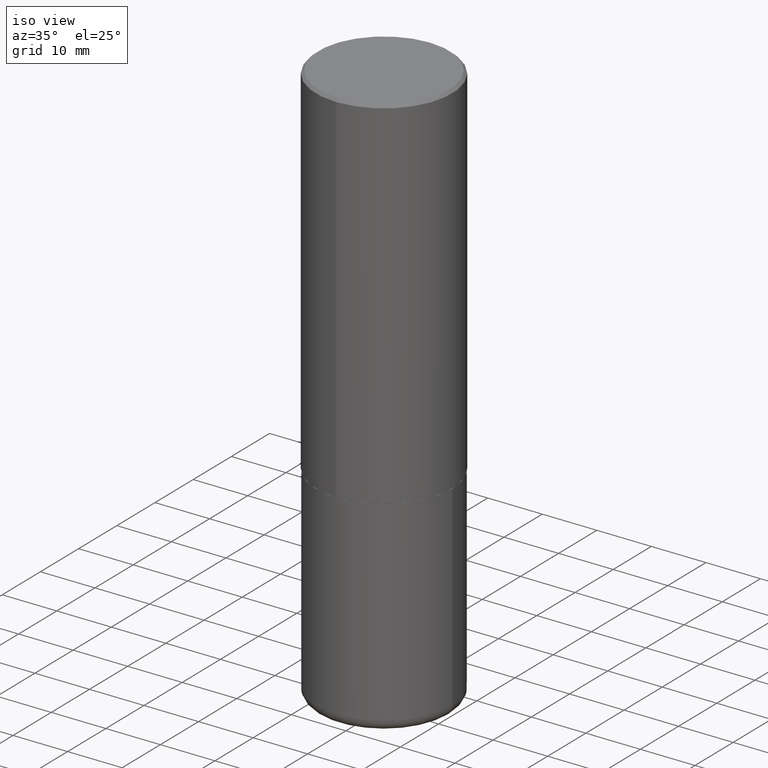
[diagram: clean part render]
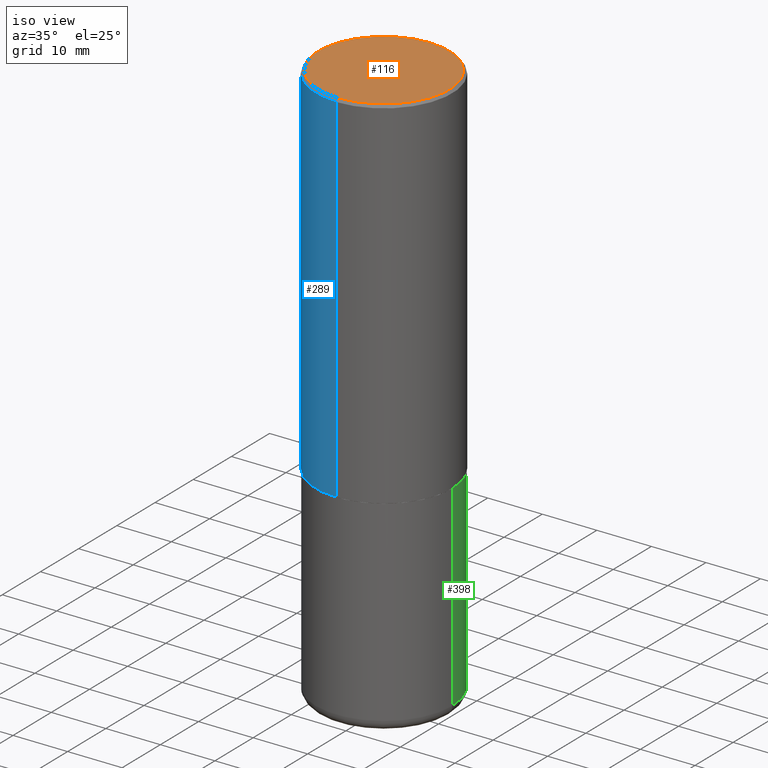
[diagram: same view with three faces highlighted in distinct colors, each labeled with its STEP entity id]
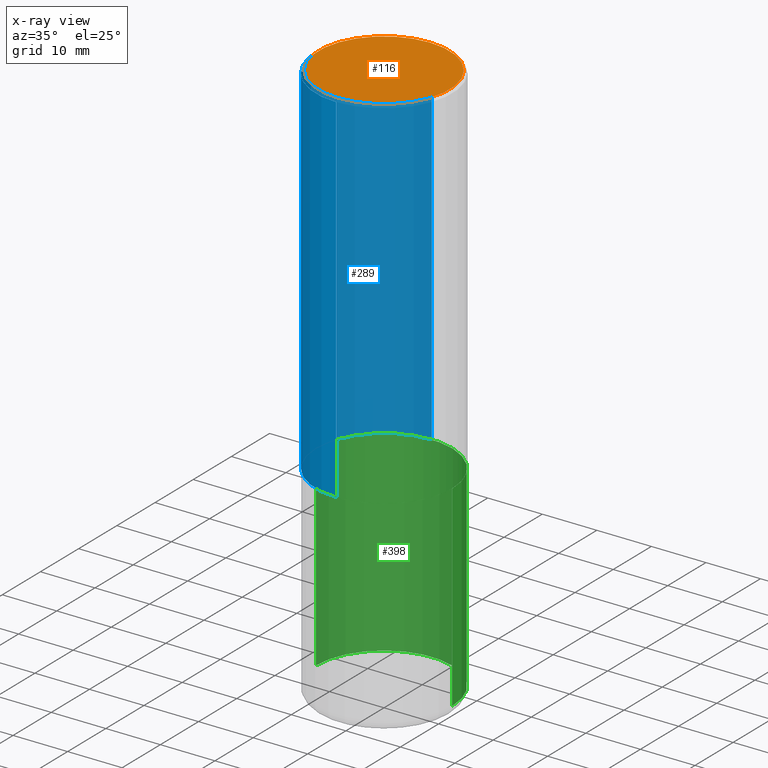
[diagram: x-ray of the same camera — body ghosted, the three highlighted faces saturated]
A machine part, iso view with three faces highlighted in distinct colors.
The next image is the same camera in x-ray (body ghosted, the three faces saturated) — at least one of them is partly hidden behind the body in this view.
Their STEP definitions:

[orange] entity #116 — the highlighted planar face has unit normal (0, -0, -1).
#32 = AXIS2_PLACEMENT_3D ( 'NONE', #371, #339, #60 ) ;
#60 = DIRECTION ( 'NONE',  ( 6.982962677686265922E-15, 1.000000000000000000, -3.490078220512605001E-15 ) ) ;
#82 = DIRECTION ( 'NONE',  ( -2.446448598478591086E-29, 3.490078220512604606E-15, 1.000000000000000000 ) ) ;
#114 = VERTEX_POINT ( 'NONE', #212 ) ;
#116 = ADVANCED_FACE ( 'NONE', ( #121 ), #244, .F. ) ;
#121 = FACE_OUTER_BOUND ( 'NONE', #333, .T. ) ;
#139 = CARTESIAN_POINT ( 'NONE',  ( -3.325455558251186907E-45, 4.744060441062489317E-31, 1.359299173634482631E-16 ) ) ;
#159 = DIRECTION ( 'NONE',  ( -6.982962677686265133E-15, -1.000000000000000000, 3.490078220512604606E-15 ) ) ;
#212 = CARTESIAN_POINT ( 'NONE',  ( 3.366835455046433267E-15, 0.4721499999999999031, -1.511910514451577641E-15 ) ) ;
#232 = DIRECTION ( 'NONE',  ( -6.982962677686265133E-15, -1.000000000000000000, 3.490078220512604606E-15 ) ) ;
#238 = EDGE_CURVE ( 'NONE', #304, #114, #256, .T. ) ;
#244 = PLANE ( 'NONE',  #32 ) ;
#254 = DIRECTION ( 'NONE',  ( -2.446448598478591086E-29, 3.490078220512604606E-15, 1.000000000000000000 ) ) ;
#256 = CIRCLE ( 'NONE', #411, 0.4721499999999999031 ) ;
#262 = CIRCLE ( 'NONE', #288, 0.4721499999999999031 ) ;
#264 = ORIENTED_EDGE ( 'NONE', *, *, #391, .T. ) ;
#288 = AXIS2_PLACEMENT_3D ( 'NONE', #139, #82, #232 ) ;
#291 = CARTESIAN_POINT ( 'NONE',  ( -3.325455558251186907E-45, 4.744060441062489317E-31, 1.359299173634482631E-16 ) ) ;
#302 = ORIENTED_EDGE ( 'NONE', *, *, #238, .T. ) ;
#304 = VERTEX_POINT ( 'NONE', #417 ) ;
#333 = EDGE_LOOP ( 'NONE', ( #264, #302 ) ) ;
#339 = DIRECTION ( 'NONE',  ( 2.446448598478590525E-29, -3.490078220512605001E-15, -1.000000000000000000 ) ) ;
#371 = CARTESIAN_POINT ( 'NONE',  ( 3.297005828269569575E-15, 0.4721499999999999031, -1.579875473133301847E-15 ) ) ;
#391 = EDGE_CURVE ( 'NONE', #114, #304, #262, .T. ) ;
#411 = AXIS2_PLACEMENT_3D ( 'NONE', #291, #254, #159 ) ;
#417 = CARTESIAN_POINT ( 'NONE',  ( -3.307789109625543325E-15, -0.4721499999999999031, 1.783770349178474069E-15 ) ) ;

[blue] entity #289 — the highlighted cylindrical surface (partial cylindrical patch) has radius 12.5006 mm, axis along (-0, 0, 1).
#5 = VERTEX_POINT ( 'NONE', #95 ) ;
#8 = AXIS2_PLACEMENT_3D ( 'NONE', #34, #66, #188 ) ;
#11 = VERTEX_POINT ( 'NONE', #148 ) ;
#12 = DIRECTION ( 'NONE',  ( -2.446448598478590805E-29, 3.490078220512605001E-15, 1.000000000000000000 ) ) ;
#13 = VERTEX_POINT ( 'NONE', #407 ) ;
#24 = DIRECTION ( 'NONE',  ( -6.982962677686265922E-15, -1.000000000000000000, 3.486624039460256542E-15 ) ) ;
#27 = VERTEX_POINT ( 'NONE', #58 ) ;
#30 = VECTOR ( 'NONE', #342, 39.37007874015748143 ) ;
#34 = CARTESIAN_POINT ( 'NONE',  ( 0.000000000000000000, 0.000000000000000000, 0.000000000000000000 ) ) ;
#58 = CARTESIAN_POINT ( 'NONE',  ( -3.436665081823234245E-15, -0.4921500000000093022, -2.597399999999999043 ) ) ;
#66 = DIRECTION ( 'NONE',  ( -2.446448598478591086E-29, 3.490078220512604606E-15, 1.000000000000000000 ) ) ;
#71 = CARTESIAN_POINT ( 'NONE',  ( 6.354405589688293982E-29, -9.065129169959442290E-15, -2.597400000000000375 ) ) ;
#81 = EDGE_CURVE ( 'NONE', #27, #5, #278, .T. ) ;
#95 = CARTESIAN_POINT ( 'NONE',  ( -3.376394089603258656E-15, -0.4921500000000000874, -0.01999999999999839059 ) ) ;
#106 = CARTESIAN_POINT ( 'NONE',  ( 3.496936074043333291E-15, 0.4921500000000000874, -1.717641996225278752E-15 ) ) ;
#115 = AXIS2_PLACEMENT_3D ( 'NONE', #71, #132, #320 ) ;
#128 = EDGE_CURVE ( 'NONE', #13, #5, #142, .T. ) ;
#130 = CYLINDRICAL_SURFACE ( 'NONE', #8, 0.4921500000000000874 ) ;
#132 = DIRECTION ( 'NONE',  ( -2.446448598478591086E-29, 3.490078220512604606E-15, 1.000000000000000000 ) ) ;
#137 = LINE ( 'NONE', #106, #179 ) ;
#142 = CIRCLE ( 'NONE', #267, 0.4921500000000000319 ) ;
#148 = CARTESIAN_POINT ( 'NONE',  ( 3.496936074043366423E-15, 0.4921499999999912056, -2.597400000000002152 ) ) ;
#157 = CARTESIAN_POINT ( 'NONE',  ( -3.436665081823296565E-15, -0.4921500000000000874, 1.717641996225278752E-15 ) ) ;
#179 = VECTOR ( 'NONE', #12, 39.37007874015748143 ) ;
#183 = CARTESIAN_POINT ( 'NONE',  ( 4.892897196957208060E-31, -6.980156441025246535E-17, -0.02000000000000010797 ) ) ;
#188 = DIRECTION ( 'NONE',  ( -6.982962677686265922E-15, -1.000000000000000000, 3.490078220512604606E-15 ) ) ;
#203 = ORIENTED_EDGE ( 'NONE', *, *, #322, .F. ) ;
#229 = ORIENTED_EDGE ( 'NONE', *, *, #314, .T. ) ;
#266 = ORIENTED_EDGE ( 'NONE', *, *, #81, .T. ) ;
#267 = AXIS2_PLACEMENT_3D ( 'NONE', #183, #311, #24 ) ;
#270 = ORIENTED_EDGE ( 'NONE', *, *, #128, .F. ) ;
#278 = LINE ( 'NONE', #157, #30 ) ;
#289 = ADVANCED_FACE ( 'NONE', ( #343 ), #130, .T. ) ;
#311 = DIRECTION ( 'NONE',  ( -2.446448598478591086E-29, 3.490078220512604606E-15, 1.000000000000000000 ) ) ;
#314 = EDGE_CURVE ( 'NONE', #11, #27, #344, .T. ) ;
#320 = DIRECTION ( 'NONE',  ( -6.982962677686266711E-15, -1.000000000000000000, 3.330506545156064285E-15 ) ) ;
#322 = EDGE_CURVE ( 'NONE', #11, #13, #137, .T. ) ;
#342 = DIRECTION ( 'NONE',  ( -2.446448598478590805E-29, 3.490078220512605001E-15, 1.000000000000000000 ) ) ;
#343 = FACE_OUTER_BOUND ( 'NONE', #392, .T. ) ;
#344 = CIRCLE ( 'NONE', #115, 0.4921500000000002539 ) ;
#392 = EDGE_LOOP ( 'NONE', ( #203, #229, #266, #270 ) ) ;
#407 = CARTESIAN_POINT ( 'NONE',  ( 3.436665081823296565E-15, 0.4921499999999999764, -0.02000000000000182188 ) ) ;

[green] entity #398 — the highlighted cylindrical surface (partial cylindrical patch) has radius 12.5006 mm, axis along (-0, 0, 1).
#9 = CIRCLE ( 'NONE', #55, 0.4921499999999999764 ) ;
#55 = AXIS2_PLACEMENT_3D ( 'NONE', #285, #321, #162 ) ;
#62 = EDGE_CURVE ( 'NONE', #205, #369, #309, .T. ) ;
#70 = AXIS2_PLACEMENT_3D ( 'NONE', #257, #145, #355 ) ;
#74 = CARTESIAN_POINT ( 'NONE',  ( 0.4921499999999999764, -3.436665081823295777E-15, 2.399810400207969603E-29 ) ) ;
#107 = VERTEX_POINT ( 'NONE', #154 ) ;
#123 = CARTESIAN_POINT ( 'NONE',  ( -0.4921499999999999764, 3.496936074043332897E-15, -2.420853904668951509E-29 ) ) ;
#127 = CARTESIAN_POINT ( 'NONE',  ( 0.4921500000000000874, -1.745775584234960235E-14, -4.015800000000000480 ) ) ;
#131 = VERTEX_POINT ( 'NONE', #127 ) ;
#133 = VECTOR ( 'NONE', #228, 39.37007874015748143 ) ;
#136 = ORIENTED_EDGE ( 'NONE', *, *, #147, .F. ) ;
#141 = EDGE_LOOP ( 'NONE', ( #328, #363, #136, #174 ) ) ;
#145 = DIRECTION ( 'NONE',  ( -2.445468806185136597E-29, 3.491481338843145583E-15, 1.000000000000000000 ) ) ;
#147 = EDGE_CURVE ( 'NONE', #107, #369, #9, .T. ) ;
#154 = CARTESIAN_POINT ( 'NONE',  ( 0.4921499999999999764, -1.250893019267332682E-14, -2.598400000000000265 ) ) ;
#162 = DIRECTION ( 'NONE',  ( 1.000000000000000000, -6.982962677686265922E-15, 0.000000000000000000 ) ) ;
#165 = DIRECTION ( 'NONE',  ( 1.000000000000000000, -6.982962677686265922E-15, 4.876176775795935793E-29 ) ) ;
#174 = ORIENTED_EDGE ( 'NONE', *, *, #347, .F. ) ;
#193 = CARTESIAN_POINT ( 'NONE',  ( 0.000000000000000000, 0.000000000000000000, 0.000000000000000000 ) ) ;
#196 = CARTESIAN_POINT ( 'NONE',  ( -0.4921499999999999764, -8.049741861644835125E-15, -2.598400000000000265 ) ) ;
#202 = CYLINDRICAL_SURFACE ( 'NONE', #307, 0.4921499999999999764 ) ;
#205 = VERTEX_POINT ( 'NONE', #220 ) ;
#220 = CARTESIAN_POINT ( 'NONE',  ( -0.4921500000000000874, -1.052415468648297131E-14, -4.015800000000000480 ) ) ;
#228 = DIRECTION ( 'NONE',  ( -2.445468806185136877E-29, 3.491481338843145188E-15, 1.000000000000000000 ) ) ;
#248 = CIRCLE ( 'NONE', #70, 0.4921500000000000319 ) ;
#257 = CARTESIAN_POINT ( 'NONE',  ( 9.820513631878272860E-29, -1.402109076052630500E-14, -4.015800000000000480 ) ) ;
#285 = CARTESIAN_POINT ( 'NONE',  ( 6.354306145991459756E-29, -9.072265110850031044E-15, -2.598400000000000265 ) ) ;
#307 = AXIS2_PLACEMENT_3D ( 'NONE', #193, #327, #165 ) ;
#309 = LINE ( 'NONE', #123, #393 ) ;
#318 = EDGE_CURVE ( 'NONE', #131, #205, #248, .T. ) ;
#321 = DIRECTION ( 'NONE',  ( -2.445468806185136597E-29, 3.491481338843145583E-15, 1.000000000000000000 ) ) ;
#327 = DIRECTION ( 'NONE',  ( -2.445468806185136597E-29, 3.491481338843145583E-15, 1.000000000000000000 ) ) ;
#328 = ORIENTED_EDGE ( 'NONE', *, *, #318, .T. ) ;
#347 = EDGE_CURVE ( 'NONE', #131, #107, #364, .T. ) ;
#355 = DIRECTION ( 'NONE',  ( 1.000000000000000000, -6.982962677686265133E-15, 0.000000000000000000 ) ) ;
#359 = FACE_OUTER_BOUND ( 'NONE', #141, .T. ) ;
#363 = ORIENTED_EDGE ( 'NONE', *, *, #62, .T. ) ;
#364 = LINE ( 'NONE', #74, #133 ) ;
#369 = VERTEX_POINT ( 'NONE', #196 ) ;
#377 = DIRECTION ( 'NONE',  ( -2.445468806185136877E-29, 3.491481338843145188E-15, 1.000000000000000000 ) ) ;
#393 = VECTOR ( 'NONE', #377, 39.37007874015748143 ) ;
#398 = ADVANCED_FACE ( 'NONE', ( #359 ), #202, .T. ) ;